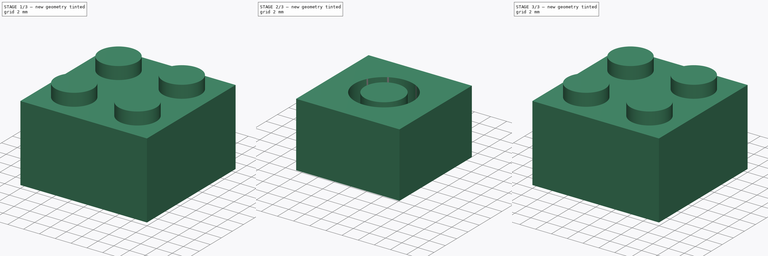
[diagram: build sequence overview — one tinted view per stage of 3, left to right]
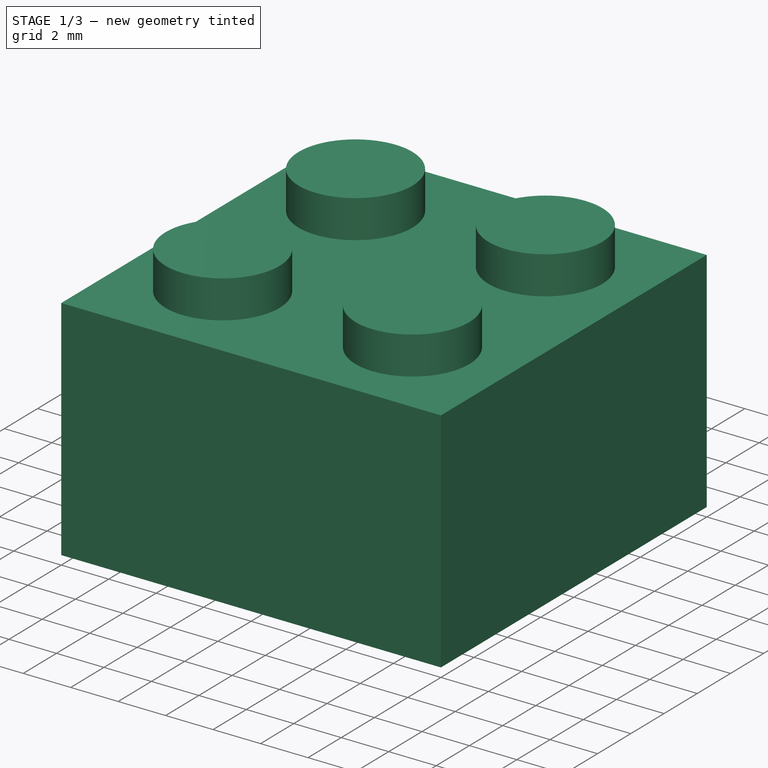
[diagram: stage 1 of 3 — iso view after this stage's code; geometry added in this stage tinted green]
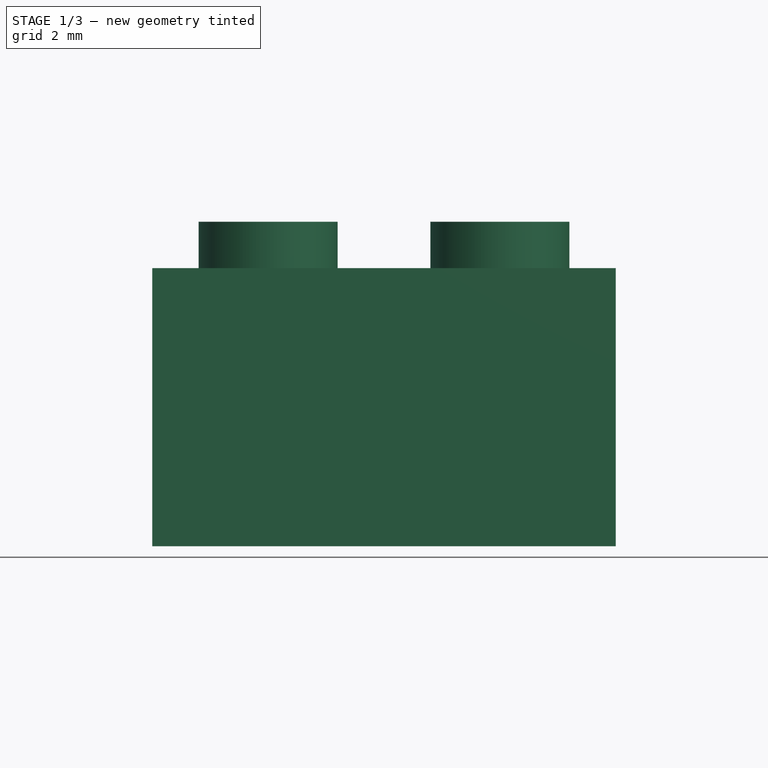
[diagram: stage 1 of 3 — front view after this stage's code; geometry added in this stage tinted green]
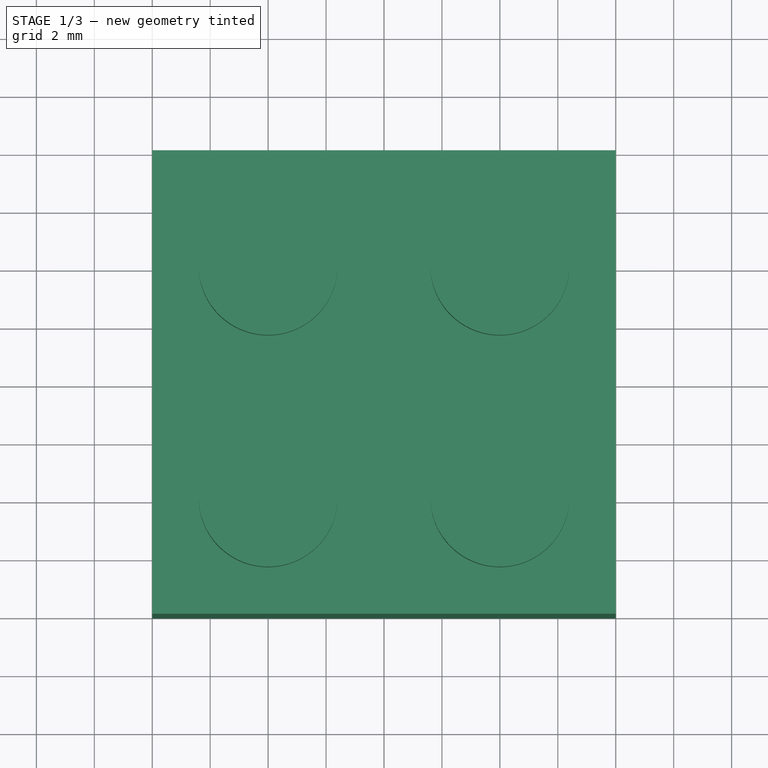
[diagram: stage 1 of 3 — top view after this stage's code; geometry added in this stage tinted green]
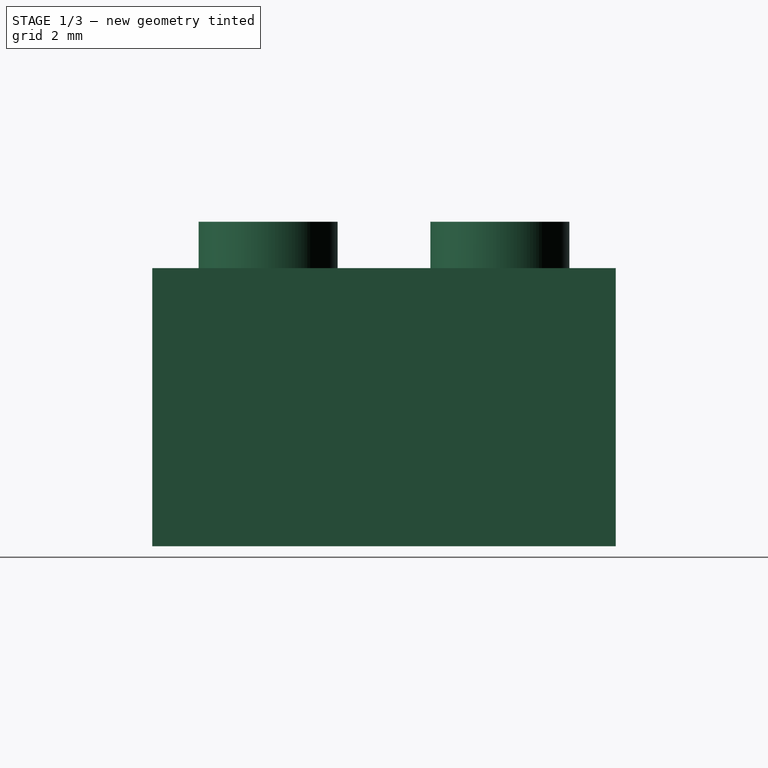
[diagram: stage 1 of 3 — right view after this stage's code; geometry added in this stage tinted green]
FCSTD DOCUMENT  (FreeCAD 0.17R13509 (Git))
Label: lego_brick
License: CreativeCommons Attribution
LicenseURL: http://creativecommons.org/licenses/by/4.0/
objects: Sketcher::SketchObject×2, Part::Extrusion×2, Part::Cut×2, Part::Box×1, Part::Cylinder×1, Part::FeaturePython×1, Part::MultiFuse×1
note: 10 computed .brp shape members not serialized (recipe doc carries the construction recipe); baked Part::Feature solids carry a one-line shape summary decoded from their .brp

FEATURE [Part::Box] Box  label="Cube"
  AttacherType = Attacher::AttachEngine3D
  Height = 9.6
  Length = 16
  Width = 16
FEATURE [Part::Cylinder] Cylinder
  Angle = 360
  AttacherType = Attacher::AttachEngine3D
  Height = 11
  Placement = pos=(4,4,0.2) rot=(0,0,1;0rad)
  Radius = 2.4
FEATURE [Part::FeaturePython] Array  # Draft array (typed FeaturePython)
  Angle = 360
  ArrayType = 0
  Axis = (0,0,1)
  Base = -> Cylinder
  Center = (0,0,0)
  Fuse = false
  IntervalAxis = (0,0,0)
  IntervalX = (8,0,0)
  IntervalY = (0,8,0)
  IntervalZ = (0,0,0)
  NumberPolar = 1
  NumberX = 2
  NumberY = 2
  NumberZ = 1
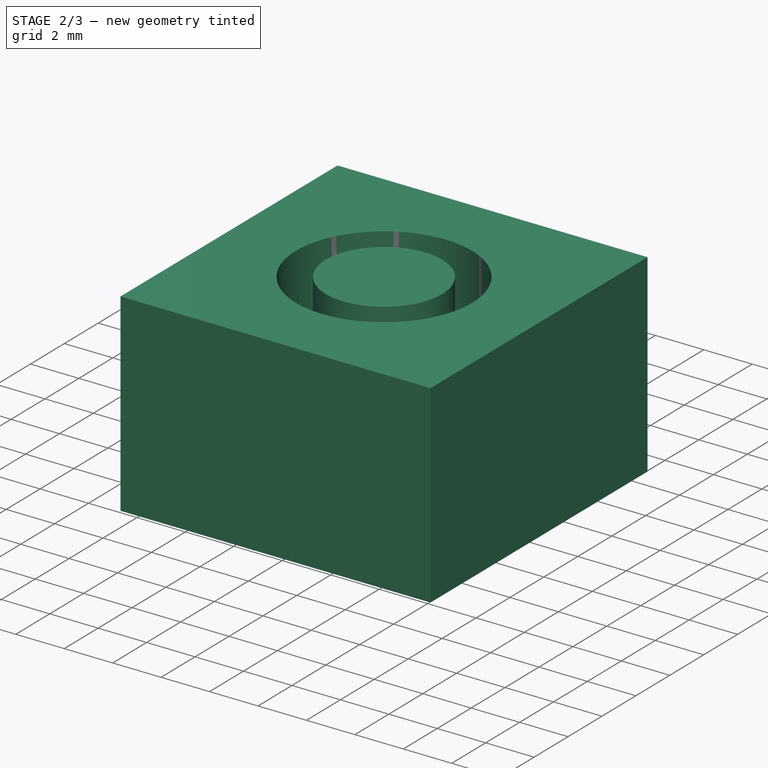
[diagram: stage 2 of 3 — iso view after this stage's code; geometry added in this stage tinted green]
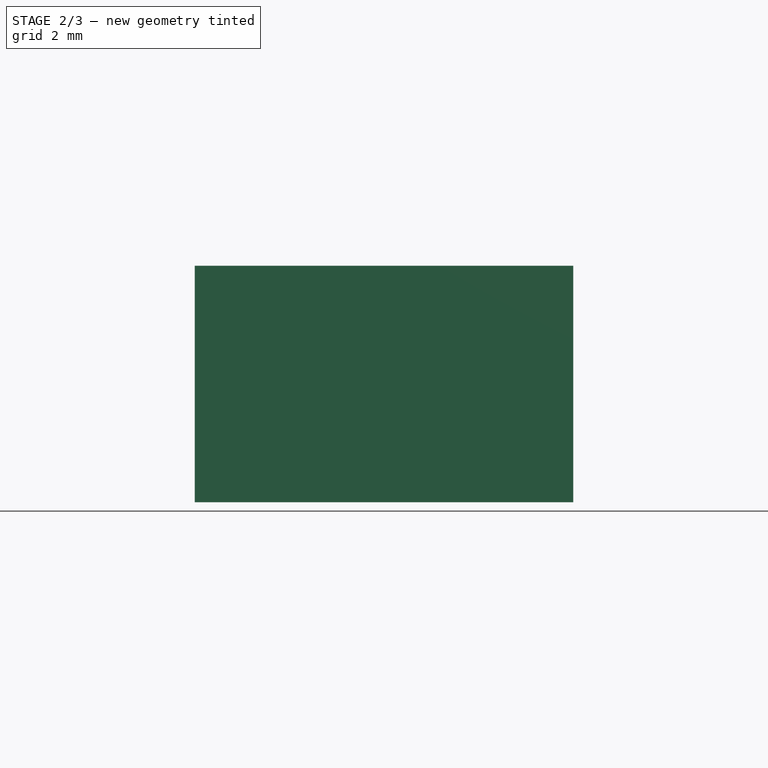
[diagram: stage 2 of 3 — front view after this stage's code; geometry added in this stage tinted green]
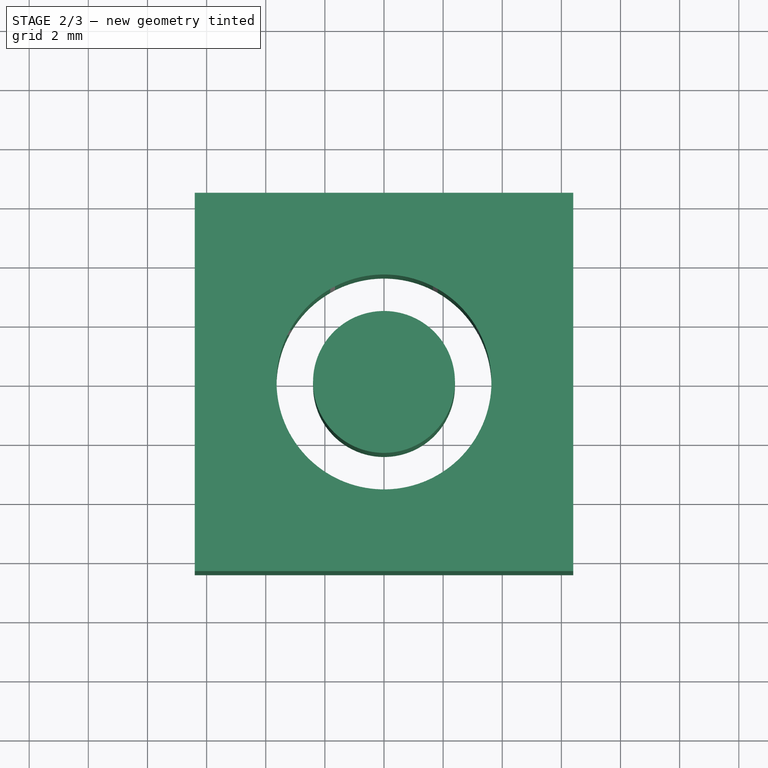
[diagram: stage 2 of 3 — top view after this stage's code; geometry added in this stage tinted green]
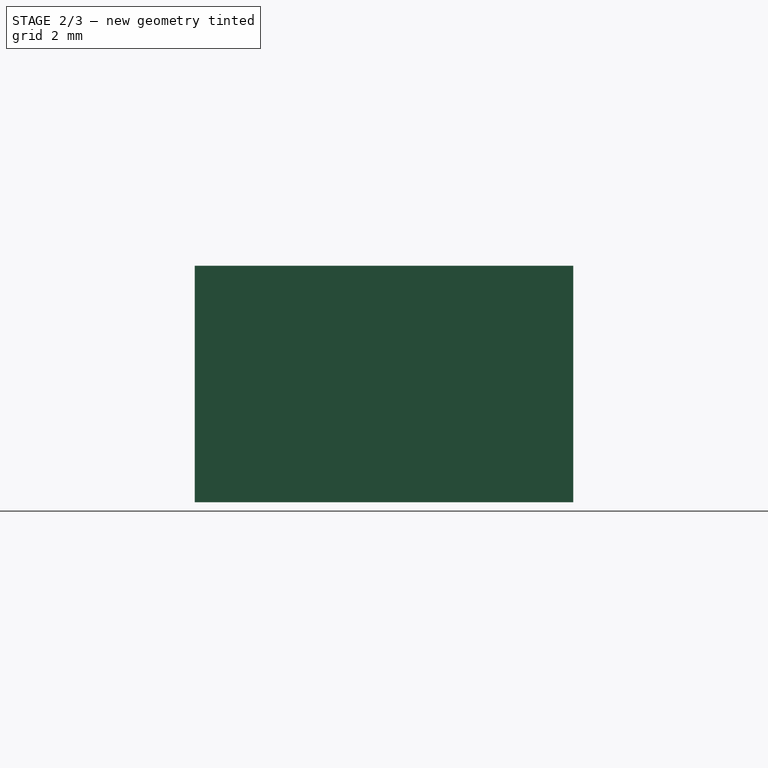
[diagram: stage 2 of 3 — right view after this stage's code; geometry added in this stage tinted green]
FEATURE [Part::MultiFuse] Fusion
  Shapes = -> [Array,Box]
FEATURE [Sketcher::SketchObject] Sketch
  MapMode = 5
  Placement = pos=(0,0,0) rot=(1,0,0;3.14159rad)
  Support = -> [Fusion]
  sketch-geometry (8):
    g0: LineSegment StartX=1.6 StartY=-1.6 StartZ=0 EndX=14.4 EndY=-1.6 EndZ=0
    g1: LineSegment StartX=14.4 StartY=-1.6 StartZ=0 EndX=14.4 EndY=-14.4 EndZ=0
    g2: LineSegment StartX=14.4 StartY=-14.4 StartZ=0 EndX=1.6 EndY=-14.4 EndZ=0
    g3: LineSegment StartX=1.6 StartY=-14.4 StartZ=0 EndX=1.6 EndY=-1.6 EndZ=0
    g4: Circle CenterX=8 CenterY=-8 CenterZ=0 NormalX=0 NormalY=0 NormalZ=1 AngleXU=0 Radius=2.4
    g5: LineSegment [constr] StartX=1.6 StartY=-1.6 StartZ=0 EndX=14.4 EndY=-14.4 EndZ=0
    g6: LineSegment [constr] StartX=14.4 StartY=-1.6 StartZ=0 EndX=1.6 EndY=-14.4 EndZ=0
    g7: Circle CenterX=8 CenterY=-8 CenterZ=0 NormalX=0 NormalY=0 NormalZ=1 AngleXU=0 Radius=3.635
  constraints (21):
    c: Coincident(g0,g1)
    c: Coincident(g1,g2)
    c: Coincident(g2,g3)
    c: Coincident(g3,g0)
    c: Horizontal(g0)
    c: Horizontal(g2)
    c: Vertical(g1)
    c: Vertical(g3)
    c: DistanceX(g-1,g0) = 1.6
    c: Equal(g0,g3)
    c: DistanceX(g0,g0) = 12.8
    c: DistanceY(g0,g-1) = 1.6
    c: Coincident(g5,g0)
    c: Coincident(g5,g1)
    c: Coincident(g6,g0)
    c: Coincident(g6,g2)
    c: PointOnObject(g4,g6)
    c: PointOnObject(g4,g5)
    c: Coincident(g7,g4)
    c: Radius(g4) = 2.4
    c: Radius(g7) = 3.635
FEATURE [Part::Extrusion] Extrude003  label="Extrude"
  Base = -> Sketch
  Dir = (0,0,1)
  DirMode = 0
  FaceMakerClass = Part::FaceMakerBullseye
  LengthFwd = 8
  LengthRev = 0
  Solid = true
  Symmetric = false
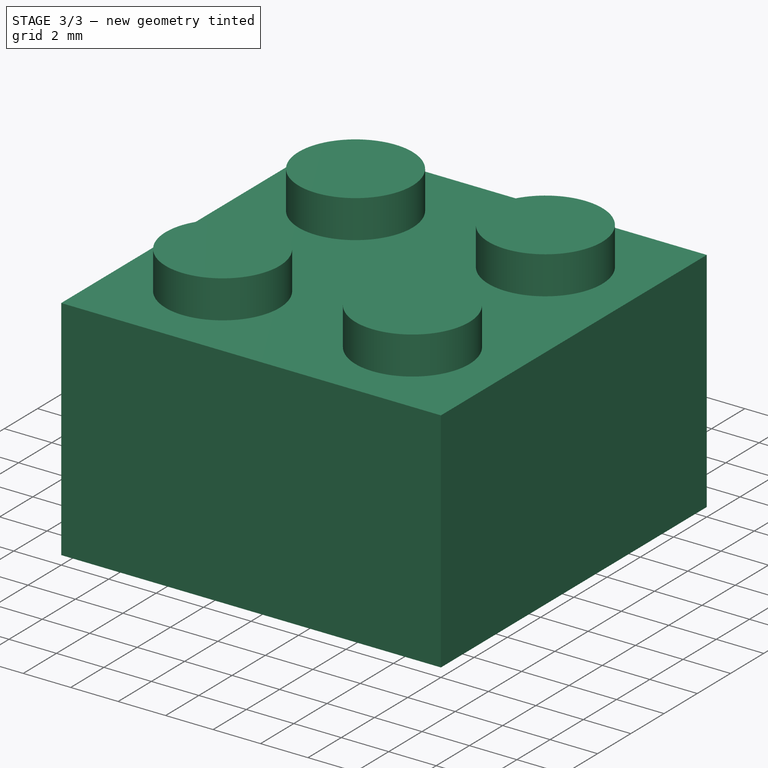
[diagram: stage 3 of 3 — iso view after this stage's code; geometry added in this stage tinted green]
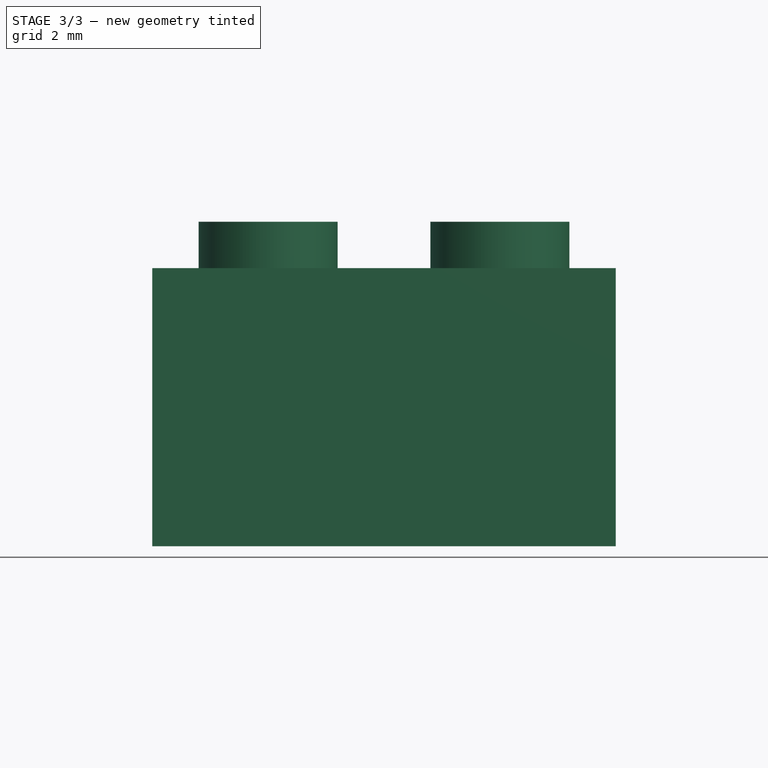
[diagram: stage 3 of 3 — front view after this stage's code; geometry added in this stage tinted green]
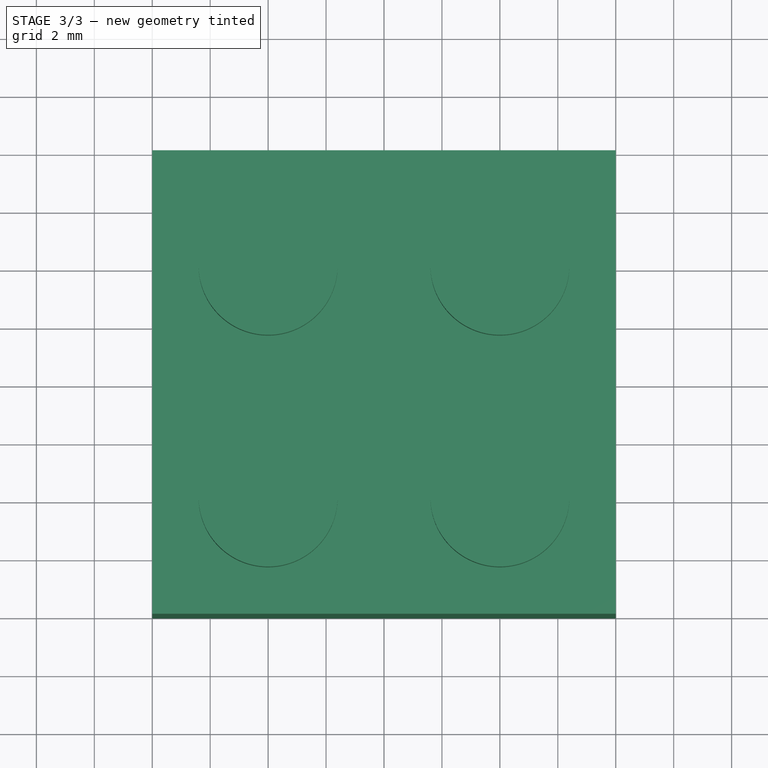
[diagram: stage 3 of 3 — top view after this stage's code; geometry added in this stage tinted green]
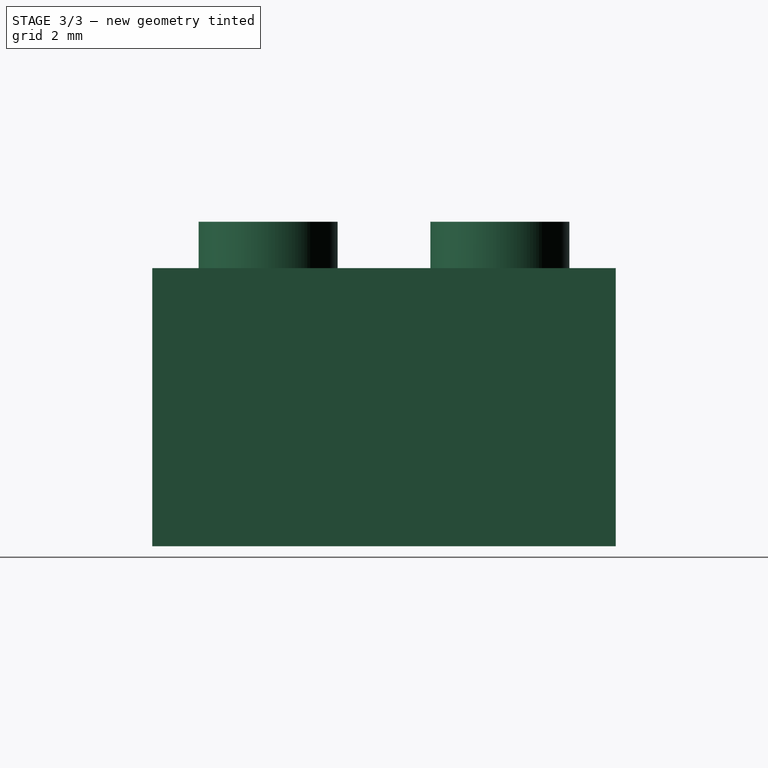
[diagram: stage 3 of 3 — right view after this stage's code; geometry added in this stage tinted green]
FEATURE [Part::Cut] Cut
  Base = -> Fusion
  Tool = -> Extrude003
FEATURE [Sketcher::SketchObject] Sketch001
  MapMode = 5
  Placement = pos=(0,0,8) rot=(1,0,0;3.14159rad)
  Support = -> [Cut]
  sketch-geometry (8):
    g0: Circle CenterX=4 CenterY=-4 CenterZ=0 NormalX=0 NormalY=0 NormalZ=1 AngleXU=0 Radius=1.2
    g1: Circle CenterX=12 CenterY=-4 CenterZ=0 NormalX=0 NormalY=0 NormalZ=1 AngleXU=0 Radius=1.2
    g2: Circle CenterX=4 CenterY=-12 CenterZ=0 NormalX=0 NormalY=0 NormalZ=1 AngleXU=0 Radius=1.2
    g3: Circle CenterX=12 CenterY=-12 CenterZ=0 NormalX=0 NormalY=0 NormalZ=1 AngleXU=0 Radius=1.2
    g4: LineSegment [constr] StartX=4 StartY=-4 StartZ=0 EndX=12 EndY=-4 EndZ=0
    g5: LineSegment [constr] StartX=12 StartY=-4 StartZ=0 EndX=12 EndY=-12 EndZ=0
    g6: LineSegment [constr] StartX=12 StartY=-12 StartZ=0 EndX=4 EndY=-12 EndZ=0
    g7: LineSegment [constr] StartX=4 StartY=-12 StartZ=0 EndX=4 EndY=-4 EndZ=0
  constraints (20):
    c: DistanceX(g-1,g0) = 4
    c: Radius(g0) = 1.2
    c: DistanceY(g0,g-1) = 4
    c: Coincident(g4,g0)
    c: Coincident(g4,g1)
    c: Horizontal(g4)
    c: Coincident(g5,g3)
    c: Coincident(g6,g2)
    c: Vertical(g7)
    c: Horizontal(g6)
    c: Vertical(g5)
    c: Coincident(g3,g6)
    c: Coincident(g2,g7)
    c: Coincident(g7,g0)
    c: Equal(g3,g1)
    c: Equal(g1,g0)
    c: Equal(g0,g2)
    c: DistanceX(g4,g4) = 8
    c: Coincident(g1,g5)
    c: Equal(g5,g4)
FEATURE [Part::Extrusion] Extrude  label="Extrude001"
  Base = -> Sketch001
  Dir = (0,0,1)
  DirMode = 0
  FaceMakerClass = Part::FaceMakerBullseye
  LengthFwd = 1.6
  LengthRev = 0
  Solid = true
  Symmetric = false
FEATURE [Part::Cut] Cut001
  Base = -> Cut
  Tool = -> Extrude
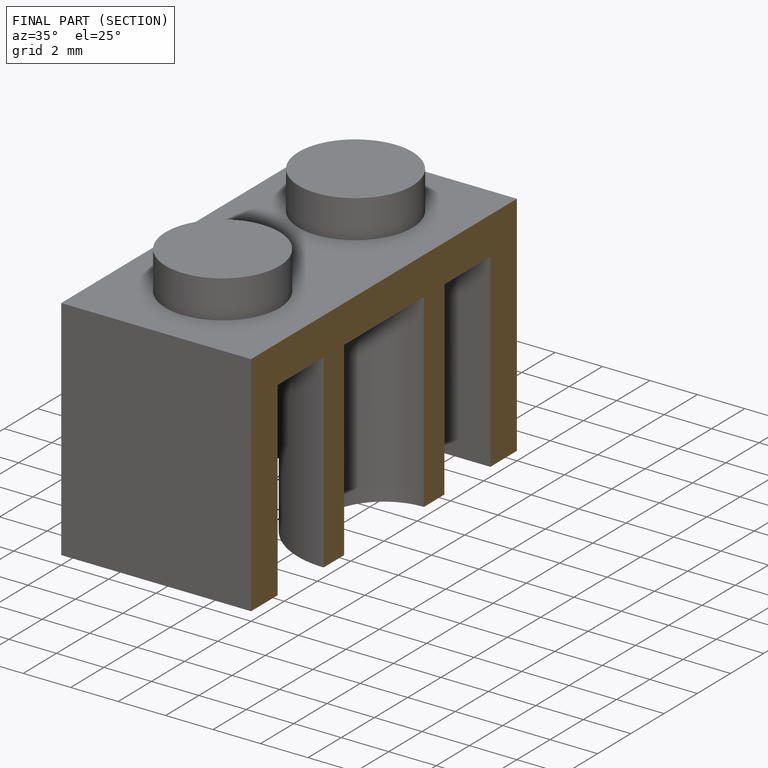
[diagram: finished part — half-section view (interior)]
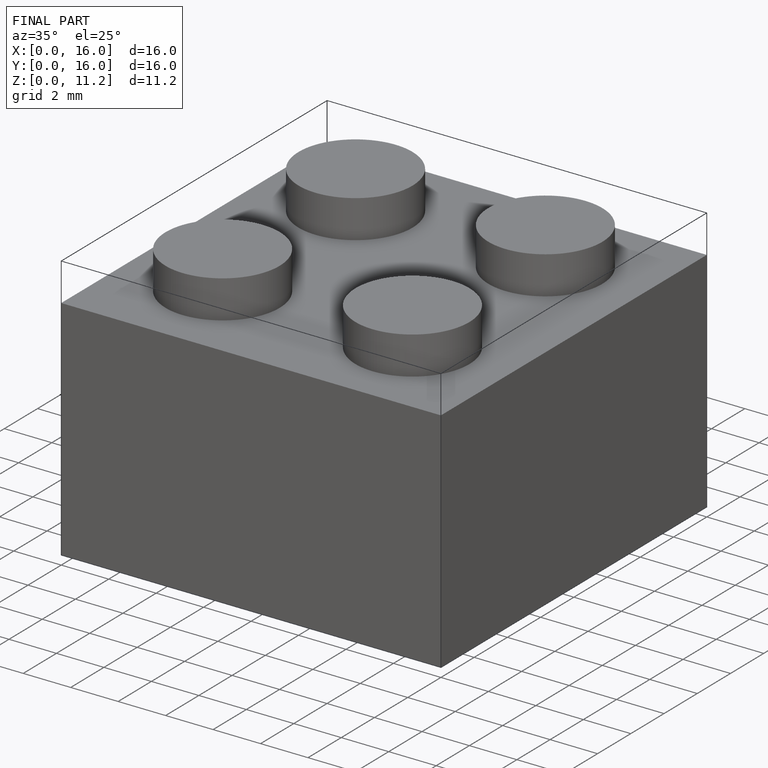
[diagram: finished part — iso view with bounding-box wireframe]
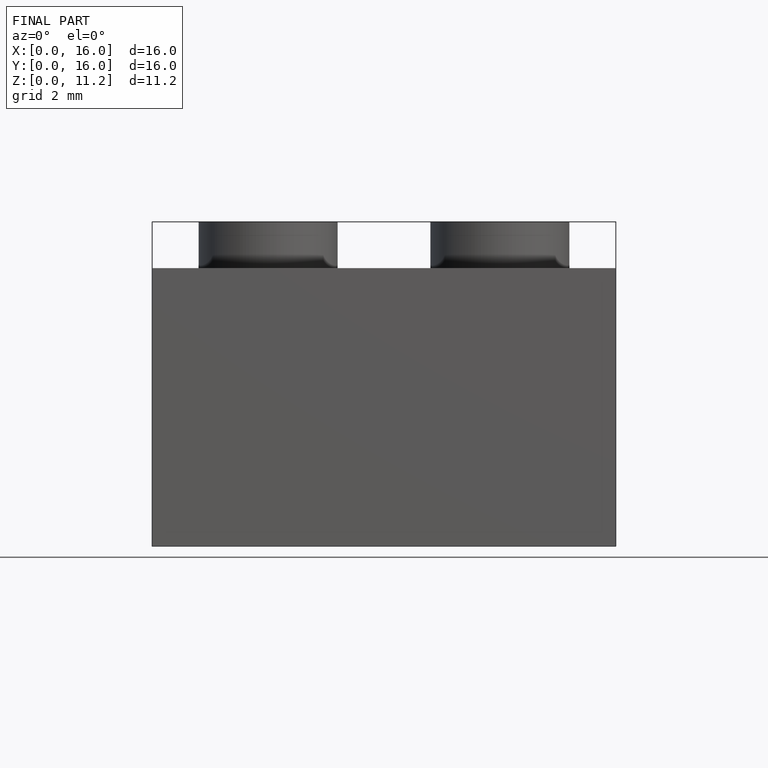
[diagram: finished part — front view with bounding-box wireframe]
